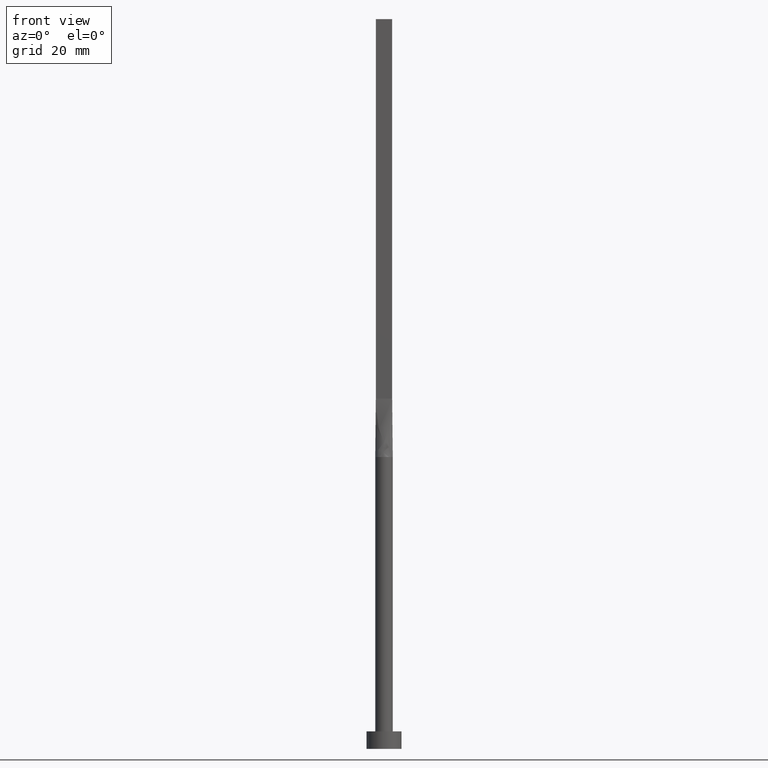
[diagram: clean part render]
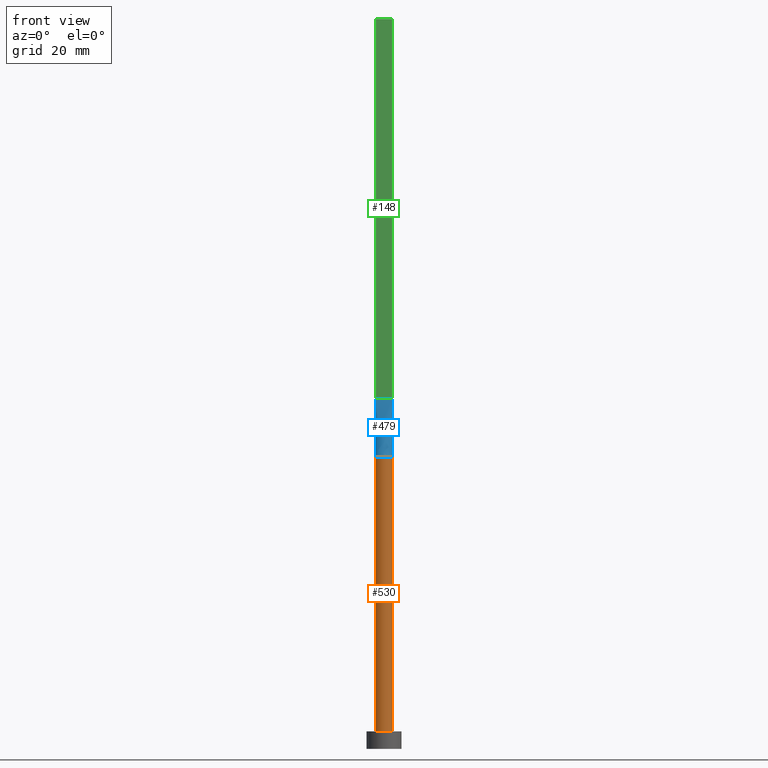
[diagram: same view with three faces highlighted in distinct colors, each labeled with its STEP entity id]
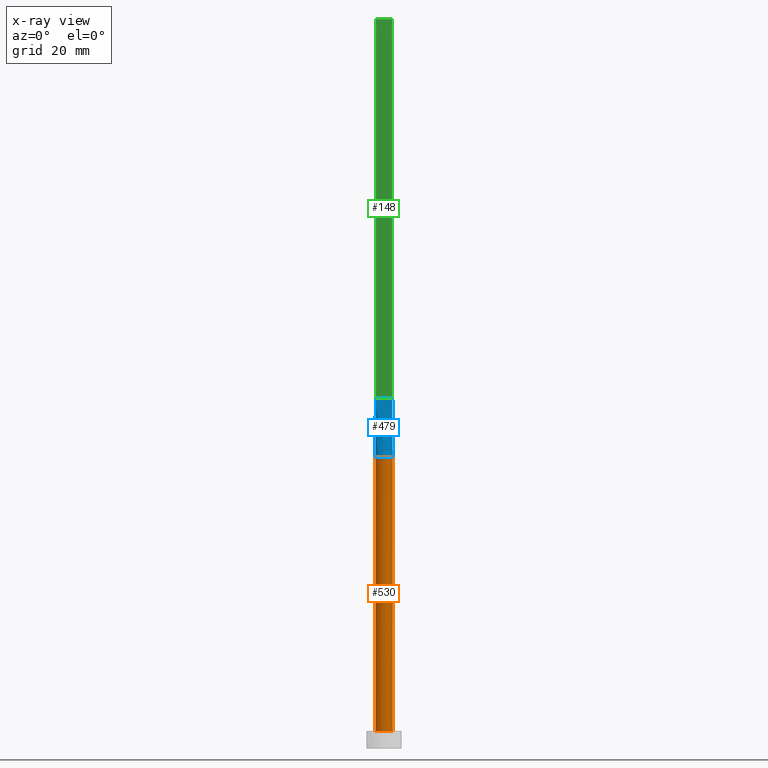
[diagram: x-ray of the same camera — body ghosted, the three highlighted faces saturated]
A machine part, front view with three faces highlighted in distinct colors.
The next image is the same camera in x-ray (body ghosted, the three faces saturated) — at least one of them is partly hidden behind the body in this view.
Their STEP definitions:

[orange] entity #530 — the highlighted cylindrical surface (edge-blend (fillet) strip) has radius 1.5 mm, axis along (-0, -0, -1).
#2 = CARTESIAN_POINT ( 'NONE',  ( -1.499909062348296462, -1.026848616785427865E-15, 50.00000000000000000 ) ) ;
#19 = CARTESIAN_POINT ( 'NONE',  ( 0.000000000000000000, 0.000000000000000000, 50.00000000000000000 ) ) ;
#34 = AXIS2_PLACEMENT_3D ( 'NONE', #104, #538, #317 ) ;
#35 = EDGE_LOOP ( 'NONE', ( #404, #46, #324, #185, #490, #385 ) ) ;
#43 = CIRCLE ( 'NONE', #407, 1.500000000000000222 ) ;
#46 = ORIENTED_EDGE ( 'NONE', *, *, #56, .F. ) ;
#56 = EDGE_CURVE ( 'NONE', #287, #114, #517, .T. ) ;
#80 = DIRECTION ( 'NONE',  ( 0.000000000000000000, 0.000000000000000000, 1.000000000000000000 ) ) ;
#83 = AXIS2_PLACEMENT_3D ( 'NONE', #379, #558, #553 ) ;
#85 = CARTESIAN_POINT ( 'NONE',  ( 1.476789766994309527, -0.2637122300648489515, 50.00000000000000000 ) ) ;
#104 = CARTESIAN_POINT ( 'NONE',  ( 0.000000000000000000, 0.000000000000000000, 3.000000000000000000 ) ) ;
#114 = VERTEX_POINT ( 'NONE', #336 ) ;
#128 = CARTESIAN_POINT ( 'NONE',  ( 0.000000000000000000, 0.000000000000000000, 50.00000000000000000 ) ) ;
#176 = VERTEX_POINT ( 'NONE', #471 ) ;
#185 = ORIENTED_EDGE ( 'NONE', *, *, #499, .F. ) ;
#187 = EDGE_CURVE ( 'NONE', #388, #287, #461, .T. ) ;
#191 = VECTOR ( 'NONE', #215, 1000.000000000000000 ) ;
#215 = DIRECTION ( 'NONE',  ( -0.000000000000000000, -0.000000000000000000, -1.000000000000000000 ) ) ;
#217 = EDGE_CURVE ( 'NONE', #476, #304, #396, .T. ) ;
#238 = CIRCLE ( 'NONE', #34, 1.500000000000000222 ) ;
#244 = CARTESIAN_POINT ( 'NONE',  ( 0.000000000000000000, 0.000000000000000000, 50.00000000000000000 ) ) ;
#249 = EDGE_CURVE ( 'NONE', #114, #176, #581, .T. ) ;
#257 = CARTESIAN_POINT ( 'NONE',  ( 1.500000000000000222, 1.836970198721030181E-16, 50.00000000000000000 ) ) ;
#268 = AXIS2_PLACEMENT_3D ( 'NONE', #19, #333, #563 ) ;
#283 = CYLINDRICAL_SURFACE ( 'NONE', #83, 1.500000000000000222 ) ;
#287 = VERTEX_POINT ( 'NONE', #85 ) ;
#288 = FACE_OUTER_BOUND ( 'NONE', #35, .T. ) ;
#304 = VERTEX_POINT ( 'NONE', #358 ) ;
#311 = DIRECTION ( 'NONE',  ( -0.000000000000000000, -0.000000000000000000, -1.000000000000000000 ) ) ;
#317 = DIRECTION ( 'NONE',  ( 1.000000000000000000, 0.000000000000000000, 0.000000000000000000 ) ) ;
#324 = ORIENTED_EDGE ( 'NONE', *, *, #187, .F. ) ;
#328 = DIRECTION ( 'NONE',  ( 0.000000000000000000, 0.000000000000000000, 1.000000000000000000 ) ) ;
#333 = DIRECTION ( 'NONE',  ( 0.000000000000000000, 0.000000000000000000, 1.000000000000000000 ) ) ;
#335 = DIRECTION ( 'NONE',  ( 1.000000000000000000, 0.000000000000000000, 0.000000000000000000 ) ) ;
#336 = CARTESIAN_POINT ( 'NONE',  ( 1.499909062348296462, 3.515891419768138559E-16, 50.00000000000000000 ) ) ;
#358 = CARTESIAN_POINT ( 'NONE',  ( -1.500000000000000222, 0.000000000000000000, 3.000000000000000000 ) ) ;
#379 = CARTESIAN_POINT ( 'NONE',  ( 0.000000000000000000, 0.000000000000000000, 50.00000000000000000 ) ) ;
#385 = ORIENTED_EDGE ( 'NONE', *, *, #470, .T. ) ;
#388 = VERTEX_POINT ( 'NONE', #534 ) ;
#396 = LINE ( 'NONE', #573, #419 ) ;
#404 = ORIENTED_EDGE ( 'NONE', *, *, #249, .F. ) ;
#407 = AXIS2_PLACEMENT_3D ( 'NONE', #244, #328, #335 ) ;
#419 = VECTOR ( 'NONE', #311, 1000.000000000000000 ) ;
#446 = DIRECTION ( 'NONE',  ( 1.000000000000000000, 0.000000000000000000, 0.000000000000000000 ) ) ;
#461 = CIRCLE ( 'NONE', #519, 1.500000000000000222 ) ;
#470 = EDGE_CURVE ( 'NONE', #304, #176, #238, .T. ) ;
#471 = CARTESIAN_POINT ( 'NONE',  ( 1.500000000000000222, 1.836970198721030181E-16, 3.000000000000000000 ) ) ;
#476 = VERTEX_POINT ( 'NONE', #2 ) ;
#490 = ORIENTED_EDGE ( 'NONE', *, *, #217, .T. ) ;
#499 = EDGE_CURVE ( 'NONE', #476, #388, #43, .T. ) ;
#517 = CIRCLE ( 'NONE', #268, 1.500000000000000222 ) ;
#519 = AXIS2_PLACEMENT_3D ( 'NONE', #128, #80, #446 ) ;
#530 = ADVANCED_FACE ( 'NONE', ( #288 ), #283, .T. ) ;
#534 = CARTESIAN_POINT ( 'NONE',  ( -1.476780214353118348, -0.2637106662004926605, 50.00000000000000000 ) ) ;
#538 = DIRECTION ( 'NONE',  ( 0.000000000000000000, 0.000000000000000000, 1.000000000000000000 ) ) ;
#553 = DIRECTION ( 'NONE',  ( -1.000000000000000000, 0.000000000000000000, 0.000000000000000000 ) ) ;
#558 = DIRECTION ( 'NONE',  ( -0.000000000000000000, -0.000000000000000000, -1.000000000000000000 ) ) ;
#563 = DIRECTION ( 'NONE',  ( 1.000000000000000000, -7.105427357601001859E-15, 0.000000000000000000 ) ) ;
#573 = CARTESIAN_POINT ( 'NONE',  ( -1.500000000000000222, 0.000000000000000000, 50.00000000000000000 ) ) ;
#581 = LINE ( 'NONE', #257, #191 ) ;

[blue] entity #479 — the highlighted face is a freeform B-spline surface patch.
#4 = CARTESIAN_POINT ( 'NONE',  ( 0.2093118330951404815, -1.500000000000000444, 50.00000000000001421 ) ) ;
#5 = CARTESIAN_POINT ( 'NONE',  ( 0.9436169880431068968, -1.179536671679308535, 50.00000000000000000 ) ) ;
#8 = CARTESIAN_POINT ( 'NONE',  ( -0.8166666666666675400, -0.2499999999999996669, 60.00000000000000000 ) ) ;
#15 = CARTESIAN_POINT ( 'NONE',  ( 1.416287091352355532, -0.5163978007200231701, 50.00000000000000711 ) ) ;
#20 = DIRECTION ( 'NONE',  ( -0.007663904067361680499, 0.001368554297743197626, 0.9999696953576046043 ) ) ;
#27 = CARTESIAN_POINT ( 'NONE',  ( 1.476641363262723106, -0.2636859577254864750, 50.00000000000000000 ) ) ;
#38 = CARTESIAN_POINT ( 'NONE',  ( -1.438320681631361619, -0.2568429788627425991, 55.00000000000000711 ) ) ;
#39 = CARTESIAN_POINT ( 'NONE',  ( -1.399999999999999911, -0.2499999999999996392, 60.00000000000000711 ) ) ;
#40 = EDGE_CURVE ( 'NONE', #287, #282, #515, .T. ) ;
#47 = CARTESIAN_POINT ( 'NONE',  ( -1.283333333333333437, -0.2499999999999996669, 60.00000000000000711 ) ) ;
#48 = VERTEX_POINT ( 'NONE', #437 ) ;
#49 = CARTESIAN_POINT ( 'NONE',  ( -1.416287091352355532, -0.5163978007200222820, 50.00000000000000711 ) ) ;
#51 = VECTOR ( 'NONE', #263, 999.9999999999998863 ) ;
#52 = CARTESIAN_POINT ( 'NONE',  ( -1.476641363262723328, -0.2636859577254855869, 50.00000000000000000 ) ) ;
#55 = CARTESIAN_POINT ( 'NONE',  ( -1.285860877433235405, -0.7868275653575071971, 49.99999999999998579 ) ) ;
#57 = CARTESIAN_POINT ( 'NONE',  ( -0.5833333333333345916, -0.2499999999999996669, 60.00000000000000000 ) ) ;
#80 = DIRECTION ( 'NONE',  ( 0.000000000000000000, 0.000000000000000000, 1.000000000000000000 ) ) ;
#85 = CARTESIAN_POINT ( 'NONE',  ( 1.476789766994309527, -0.2637122300648489515, 50.00000000000000000 ) ) ;
#86 = LINE ( 'NONE', #39, #570 ) ;
#128 = CARTESIAN_POINT ( 'NONE',  ( 0.000000000000000000, 0.000000000000000000, 50.00000000000000000 ) ) ;
#147 = CARTESIAN_POINT ( 'NONE',  ( -1.399999999999999911, -0.2499999999999996392, 60.00000000000000711 ) ) ;
#154 = CARTESIAN_POINT ( 'NONE',  ( -1.166666666666666963, -0.2499999999999996669, 60.00000000000000711 ) ) ;
#156 = ORIENTED_EDGE ( 'NONE', *, *, #223, .T. ) ;
#182 = CARTESIAN_POINT ( 'NONE',  ( -1.455009719257779111, -0.3848231641531742464, 50.00000000000000711 ) ) ;
#187 = EDGE_CURVE ( 'NONE', #388, #287, #461, .T. ) ;
#188 = CARTESIAN_POINT ( 'NONE',  ( 1.193588737715979509, -0.9257784320005624235, 49.99999999999998579 ) ) ;
#190 = VECTOR ( 'NONE', #20, 999.9999999999998863 ) ;
#194 = EDGE_LOOP ( 'NONE', ( #465, #481, #578, #156 ) ) ;
#195 = CARTESIAN_POINT ( 'NONE',  ( 0.9333333333333325710, -0.2499999999999997224, 60.00000000000000000 ) ) ;
#203 = CARTESIAN_POINT ( 'NONE',  ( 1.166666666666666075, -0.2499999999999997780, 60.00000000000000000 ) ) ;
#223 = EDGE_CURVE ( 'NONE', #48, #388, #351, .T. ) ;
#228 = CARTESIAN_POINT ( 'NONE',  ( -0.4666666666666679508, -0.2499999999999996669, 60.00000000000000000 ) ) ;
#230 = CARTESIAN_POINT ( 'NONE',  ( -1.193588737715979731, -0.9257784320005619794, 50.00000000000000000 ) ) ;
#232 = CARTESIAN_POINT ( 'NONE',  ( -0.4178861784692555759, -1.454504042781961548, 50.00000000000001421 ) ) ;
#237 = CARTESIAN_POINT ( 'NONE',  ( -0.1166666666666681257, -0.2499999999999996669, 60.00000000000000000 ) ) ;
#254 = CARTESIAN_POINT ( 'NONE',  ( 1.438320681631361397, -0.2568429788627430987, 55.00000000000000711 ) ) ;
#260 = EDGE_CURVE ( 'NONE', #48, #282, #86, .T. ) ;
#263 = DIRECTION ( 'NONE',  ( -0.007663904067361702183, -0.001368554297743126936, -0.9999696953576046043 ) ) ;
#274 = FACE_OUTER_BOUND ( 'NONE', #194, .T. ) ;
#276 = CARTESIAN_POINT ( 'NONE',  ( -0.7852726932053994968, -1.293660568283136136, 50.00000000000000711 ) ) ;
#280 = CARTESIAN_POINT ( 'NONE',  ( 0.5833333333333321491, -0.2499999999999996669, 60.00000000000000000 ) ) ;
#282 = VERTEX_POINT ( 'NONE', #401 ) ;
#287 = VERTEX_POINT ( 'NONE', #85 ) ;
#292 = CARTESIAN_POINT ( 'NONE',  ( 1.283333333333332993, -0.2499999999999997780, 60.00000000000000000 ) ) ;
#305 = DIRECTION ( 'NONE',  ( 1.000000000000000000, -5.808225924029488744E-17, 0.000000000000000000 ) ) ;
#319 = CARTESIAN_POINT ( 'NONE',  ( 0.2333333333333319215, -0.2499999999999996669, 60.00000000000000000 ) ) ;
#351 = LINE ( 'NONE', #38, #51 ) ;
#364 = CARTESIAN_POINT ( 'NONE',  ( 0.4178861784692542991, -1.454504042781961548, 50.00000000000000000 ) ) ;
#367 = CARTESIAN_POINT ( 'NONE',  ( -0.9333333333333340143, -0.2499999999999996669, 60.00000000000000000 ) ) ;
#388 = VERTEX_POINT ( 'NONE', #534 ) ;
#401 = CARTESIAN_POINT ( 'NONE',  ( 1.399999999999999911, -0.2499999999999997780, 60.00000000000000711 ) ) ;
#405 = CARTESIAN_POINT ( 'NONE',  ( -0.2093118330951414807, -1.500000000000000666, 50.00000000000000711 ) ) ;
#410 = CARTESIAN_POINT ( 'NONE',  ( -0.9436169880431074519, -1.179536671679307647, 50.00000000000001421 ) ) ;
#412 = CARTESIAN_POINT ( 'NONE',  ( 0.4666666666666653418, -0.2499999999999996669, 60.00000000000000000 ) ) ;
#418 = CARTESIAN_POINT ( 'NONE',  ( 1.285860877433234961, -0.7868275653575079742, 50.00000000000000711 ) ) ;
#424 = CARTESIAN_POINT ( 'NONE',  ( 1.399999999999999911, -0.2499999999999997780, 60.00000000000000711 ) ) ;
#437 = CARTESIAN_POINT ( 'NONE',  ( -1.399999999999999911, -0.2499999999999996392, 60.00000000000000711 ) ) ;
#446 = DIRECTION ( 'NONE',  ( 1.000000000000000000, 0.000000000000000000, 0.000000000000000000 ) ) ;
#459 = CARTESIAN_POINT ( 'NONE',  ( 0.8166666666666658747, -0.2499999999999996669, 60.00000000000000000 ) ) ;
#461 = CIRCLE ( 'NONE', #519, 1.500000000000000222 ) ;
#465 = ORIENTED_EDGE ( 'NONE', *, *, #187, .T. ) ;
#479 = ADVANCED_FACE ( 'NONE', ( #274 ), #529, .T. ) ;
#481 = ORIENTED_EDGE ( 'NONE', *, *, #40, .T. ) ;
#496 = CARTESIAN_POINT ( 'NONE',  ( 0.7852726932053983866, -1.293660568283137247, 50.00000000000001421 ) ) ;
#506 = CARTESIAN_POINT ( 'NONE',  ( 1.455009719257778888, -0.3848231641531754121, 50.00000000000000711 ) ) ;
#515 = LINE ( 'NONE', #254, #190 ) ;
#519 = AXIS2_PLACEMENT_3D ( 'NONE', #128, #80, #446 ) ;
#529 = B_SPLINE_SURFACE_WITH_KNOTS ( 'NONE', 3, 1, ( 
 ( #52, #147 ),
 ( #182, #47 ),
 ( #49, #154 ),
 ( #55, #367 ),
 ( #230, #8 ),
 ( #410, #57 ),
 ( #276, #228 ),
 ( #232, #542 ),
 ( #405, #237 ),
 ( #4, #546 ),
 ( #364, #319 ),
 ( #496, #412 ),
 ( #5, #280 ),
 ( #188, #459 ),
 ( #418, #195 ),
 ( #15, #203 ),
 ( #506, #292 ),
 ( #27, #424 ) ),
 .UNSPECIFIED., .F., .F., .F.,
 ( 4, 2, 2, 2, 2, 2, 2, 2, 4 ),
 ( 2, 2 ),
 ( 0.000000000000000000, 0.1250000000000000000, 0.2500000000000000000, 0.3750000000000000000, 0.5000000000000000000, 0.6250000000000000000, 0.7500000000000000000, 0.8750000000000000000, 1.000000000000000000 ),
 ( 0.000000000000000000, 1.000000000000000000 ),
 .UNSPECIFIED. ) ;
#534 = CARTESIAN_POINT ( 'NONE',  ( -1.476780214353118348, -0.2637106662004926605, 50.00000000000000000 ) ) ;
#542 = CARTESIAN_POINT ( 'NONE',  ( -0.2333333333333347526, -0.2499999999999996669, 60.00000000000000000 ) ) ;
#546 = CARTESIAN_POINT ( 'NONE',  ( 0.1166666666666652113, -0.2499999999999996669, 60.00000000000000000 ) ) ;
#570 = VECTOR ( 'NONE', #305, 1000.000000000000000 ) ;
#578 = ORIENTED_EDGE ( 'NONE', *, *, #260, .F. ) ;

[green] entity #148 — the highlighted planar face has unit normal (0, 1, -0).
#39 = CARTESIAN_POINT ( 'NONE',  ( -1.399999999999999911, -0.2499999999999996392, 60.00000000000000711 ) ) ;
#41 = CARTESIAN_POINT ( 'NONE',  ( 1.399999999999999911, -0.2499999999999997780, 125.0000000000000000 ) ) ;
#48 = VERTEX_POINT ( 'NONE', #437 ) ;
#67 = DIRECTION ( 'NONE',  ( -0.000000000000000000, -0.000000000000000000, -1.000000000000000000 ) ) ;
#72 = AXIS2_PLACEMENT_3D ( 'NONE', #296, #245, #161 ) ;
#86 = LINE ( 'NONE', #39, #570 ) ;
#88 = LINE ( 'NONE', #41, #140 ) ;
#113 = CARTESIAN_POINT ( 'NONE',  ( -1.399999999999999911, -0.2499999999999996392, 125.0000000000000000 ) ) ;
#136 = EDGE_CURVE ( 'NONE', #409, #48, #207, .T. ) ;
#140 = VECTOR ( 'NONE', #526, 1000.000000000000000 ) ;
#148 = ADVANCED_FACE ( 'NONE', ( #341 ), #559, .F. ) ;
#161 = DIRECTION ( 'NONE',  ( -1.000000000000000000, 5.808225924029488744E-17, 0.000000000000000000 ) ) ;
#170 = LINE ( 'NONE', #179, #389 ) ;
#179 = CARTESIAN_POINT ( 'NONE',  ( -1.399999999999999911, -0.2499999999999996392, 125.0000000000000000 ) ) ;
#189 = CARTESIAN_POINT ( 'NONE',  ( -1.399999999999999911, -0.2499999999999996392, 125.0000000000000000 ) ) ;
#207 = LINE ( 'NONE', #113, #577 ) ;
#224 = ORIENTED_EDGE ( 'NONE', *, *, #264, .F. ) ;
#245 = DIRECTION ( 'NONE',  ( 5.808225924029488744E-17, 1.000000000000000000, -0.000000000000000000 ) ) ;
#260 = EDGE_CURVE ( 'NONE', #48, #282, #86, .T. ) ;
#264 = EDGE_CURVE ( 'NONE', #409, #508, #170, .T. ) ;
#271 = ORIENTED_EDGE ( 'NONE', *, *, #260, .T. ) ;
#273 = ORIENTED_EDGE ( 'NONE', *, *, #386, .F. ) ;
#282 = VERTEX_POINT ( 'NONE', #401 ) ;
#290 = EDGE_LOOP ( 'NONE', ( #271, #273, #224, #360 ) ) ;
#296 = CARTESIAN_POINT ( 'NONE',  ( -1.399999999999999911, -0.2499999999999996392, 125.0000000000000000 ) ) ;
#305 = DIRECTION ( 'NONE',  ( 1.000000000000000000, -5.808225924029488744E-17, 0.000000000000000000 ) ) ;
#341 = FACE_OUTER_BOUND ( 'NONE', #290, .T. ) ;
#360 = ORIENTED_EDGE ( 'NONE', *, *, #136, .T. ) ;
#386 = EDGE_CURVE ( 'NONE', #508, #282, #88, .T. ) ;
#389 = VECTOR ( 'NONE', #574, 1000.000000000000000 ) ;
#401 = CARTESIAN_POINT ( 'NONE',  ( 1.399999999999999911, -0.2499999999999997780, 60.00000000000000711 ) ) ;
#409 = VERTEX_POINT ( 'NONE', #189 ) ;
#437 = CARTESIAN_POINT ( 'NONE',  ( -1.399999999999999911, -0.2499999999999996392, 60.00000000000000711 ) ) ;
#469 = CARTESIAN_POINT ( 'NONE',  ( 1.399999999999999911, -0.2499999999999997780, 125.0000000000000000 ) ) ;
#508 = VERTEX_POINT ( 'NONE', #469 ) ;
#526 = DIRECTION ( 'NONE',  ( -0.000000000000000000, -0.000000000000000000, -1.000000000000000000 ) ) ;
#559 = PLANE ( 'NONE',  #72 ) ;
#570 = VECTOR ( 'NONE', #305, 1000.000000000000000 ) ;
#574 = DIRECTION ( 'NONE',  ( 1.000000000000000000, -5.808225924029488744E-17, 0.000000000000000000 ) ) ;
#577 = VECTOR ( 'NONE', #67, 1000.000000000000000 ) ;